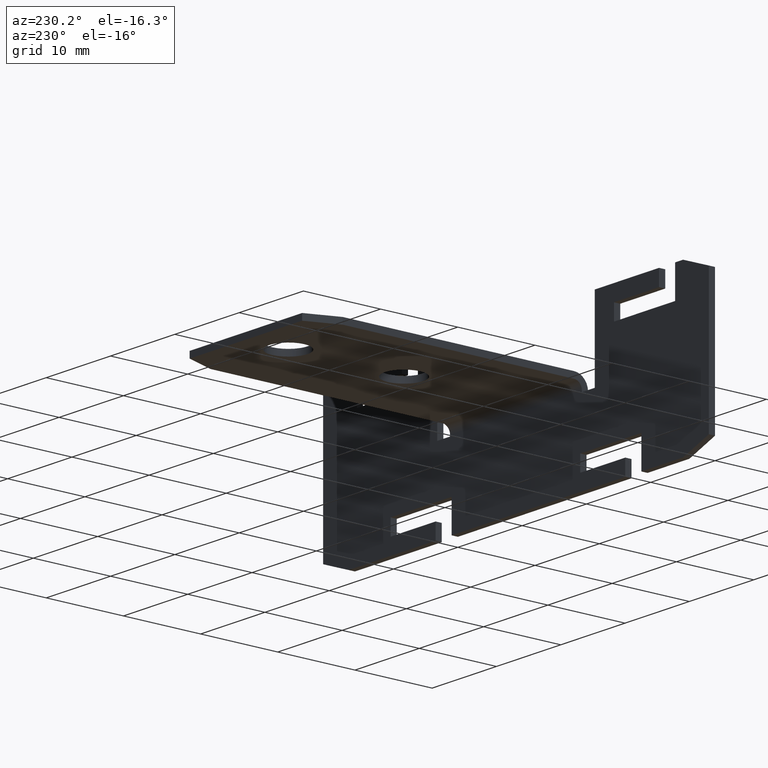
[diagram: clean part render]
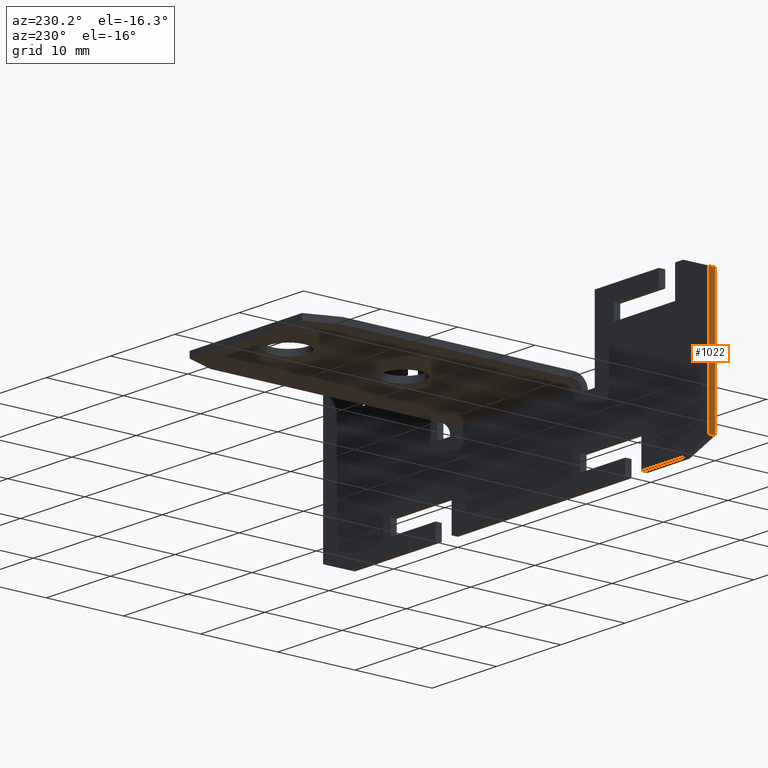
[diagram: same view with one face highlighted and labeled with its STEP entity id]
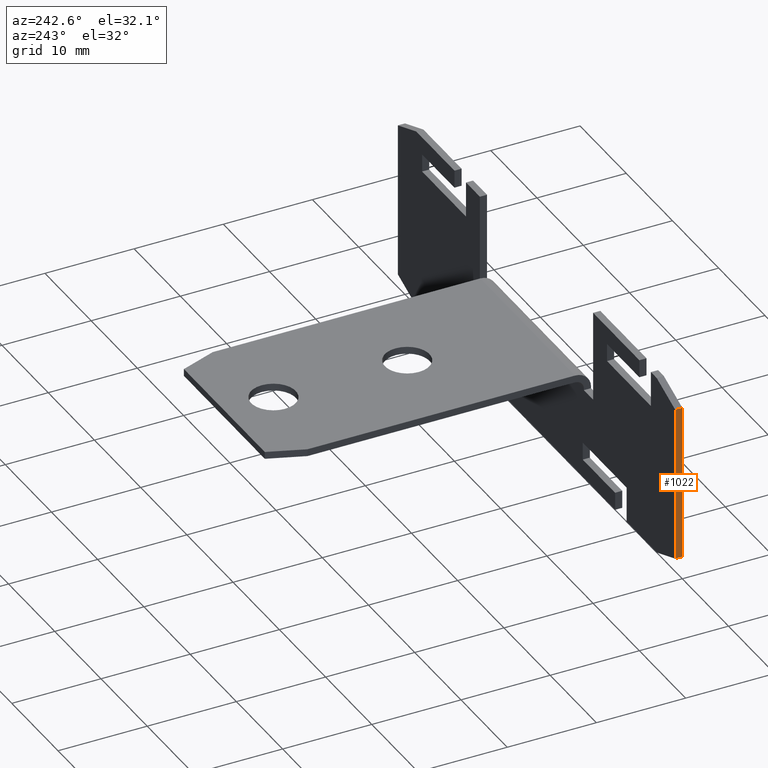
[diagram: same view with one face highlighted and labeled with its STEP entity id]
A machine part, auxiliary view. The second image highlights one B-rep face of the part: STEP entity #1022.
A second angle (auxiliary view) of the same face is appended — the face is thin or edge-on in the first view.
In plain terms, the highlighted planar face has unit normal (1, 0, 0).
Its self-contained STEP definition (entity closure, byte-faithful):
#72=FACE_OUTER_BOUND('',#126,.T.);
#126=EDGE_LOOP('',(#863,#864,#865,#866));
#214=LINE('',#1530,#350);
#250=LINE('',#1615,#386);
#251=LINE('',#1618,#387);
#259=LINE('',#1633,#395);
#350=VECTOR('',#1239,10.);
#386=VECTOR('',#1319,10.);
#387=VECTOR('',#1322,10.);
#395=VECTOR('',#1338,10.);
#466=VERTEX_POINT('',#1527);
#467=VERTEX_POINT('',#1529);
#494=VERTEX_POINT('',#1613);
#495=VERTEX_POINT('',#1617);
#582=EDGE_CURVE('',#467,#466,#214,.T.);
#626=EDGE_CURVE('',#466,#494,#250,.T.);
#627=EDGE_CURVE('',#495,#467,#251,.T.);
#635=EDGE_CURVE('',#494,#495,#259,.T.);
#863=ORIENTED_EDGE('',*,*,#626,.T.);
#864=ORIENTED_EDGE('',*,*,#635,.T.);
#865=ORIENTED_EDGE('',*,*,#627,.T.);
#866=ORIENTED_EDGE('',*,*,#582,.T.);
#972=PLANE('',#1103);
#1022=ADVANCED_FACE('',(#72),#972,.F.);
#1103=AXIS2_PLACEMENT_3D('',#1632,#1336,#1337);
#1239=DIRECTION('',(0.,0.,1.));
#1319=DIRECTION('',(0.,1.,0.));
#1322=DIRECTION('',(0.,-1.,0.));
#1336=DIRECTION('center_axis',(1.,0.,0.));
#1337=DIRECTION('ref_axis',(0.,0.,-1.));
#1338=DIRECTION('',(0.,0.,-1.));
#1527=CARTESIAN_POINT('',(-30.,-7.7715611723761E-15,8.75));
#1529=CARTESIAN_POINT('',(-30.,-7.7715611723761E-15,-8.75));
#1530=CARTESIAN_POINT('',(-30.,-7.7715611723761E-15,0.));
#1613=CARTESIAN_POINT('',(-30.,0.799999999999992,8.75));
#1615=CARTESIAN_POINT('',(-30.,0.799999999999992,8.75));
#1617=CARTESIAN_POINT('',(-30.,0.799999999999992,-8.75));
#1618=CARTESIAN_POINT('',(-30.,0.799999999999992,-8.75));
#1632=CARTESIAN_POINT('Origin',(-30.,0.799999999999992,0.));
#1633=CARTESIAN_POINT('',(-30.,0.799999999999992,0.));